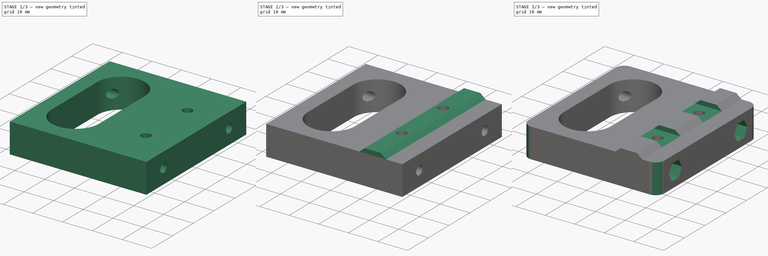
[diagram: build sequence overview — one tinted view per stage of 3, left to right]
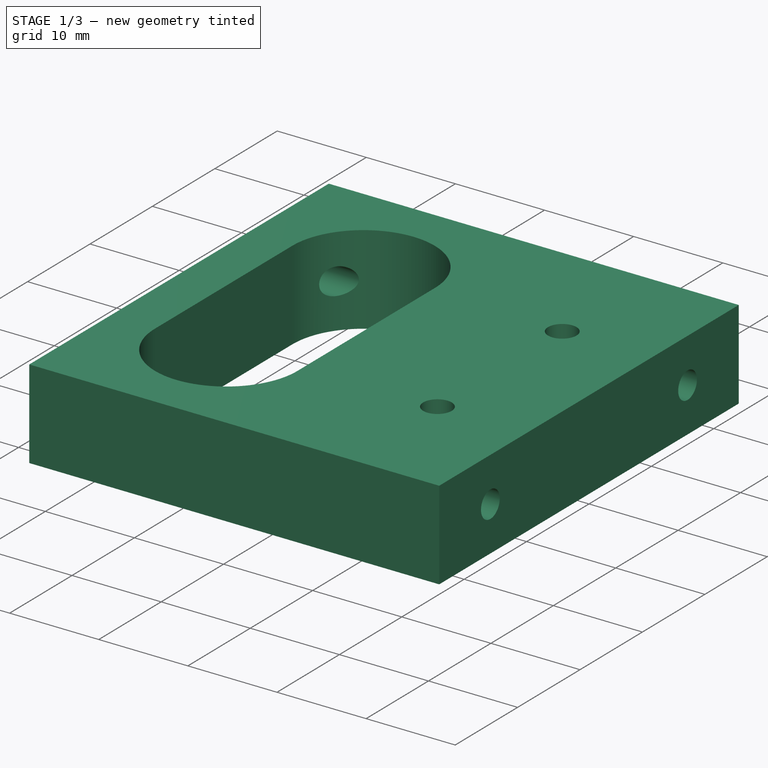
[diagram: stage 1 of 3 — iso view after this stage's code; geometry added in this stage tinted green]
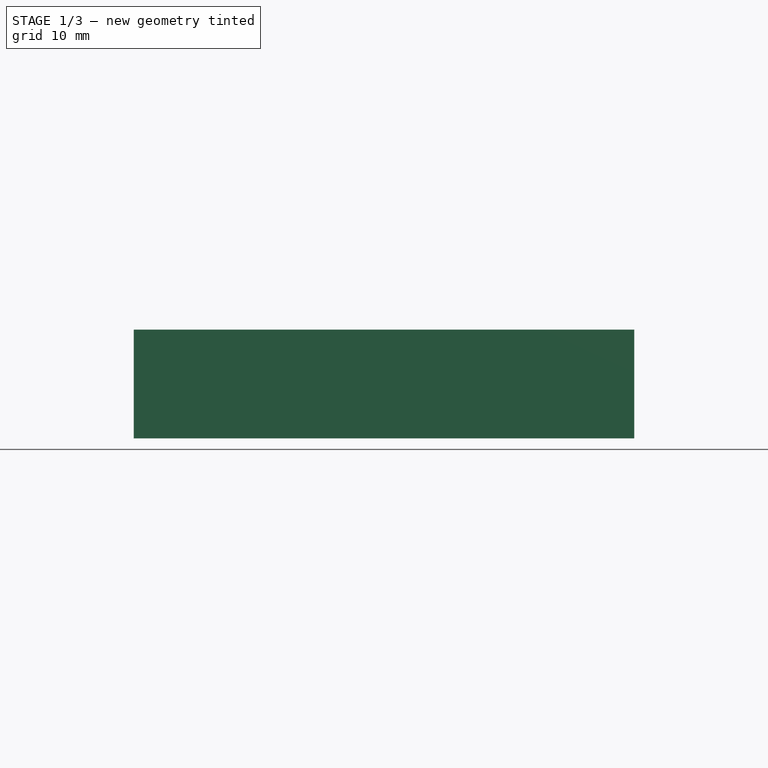
[diagram: stage 1 of 3 — front view after this stage's code; geometry added in this stage tinted green]
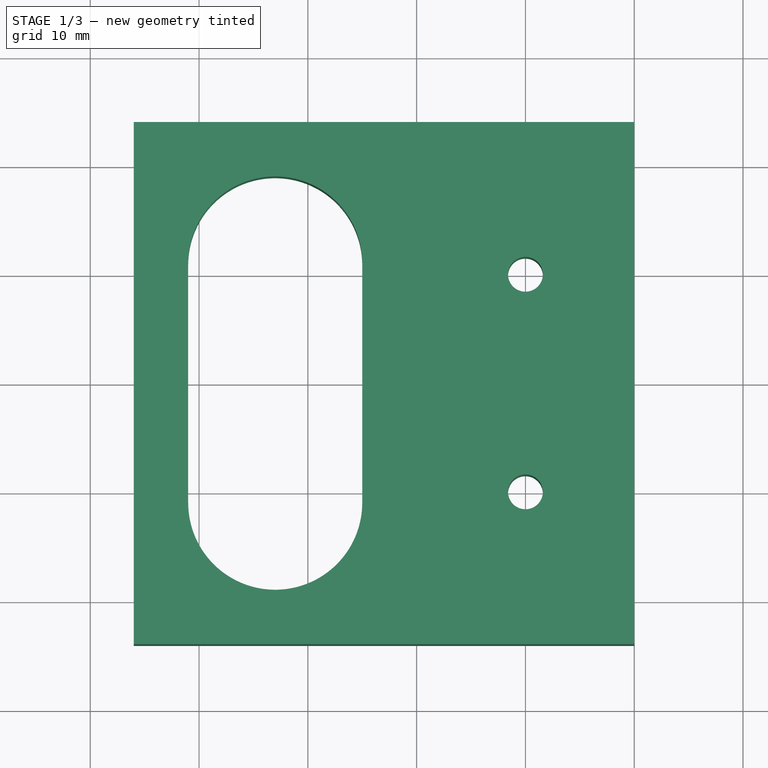
[diagram: stage 1 of 3 — top view after this stage's code; geometry added in this stage tinted green]
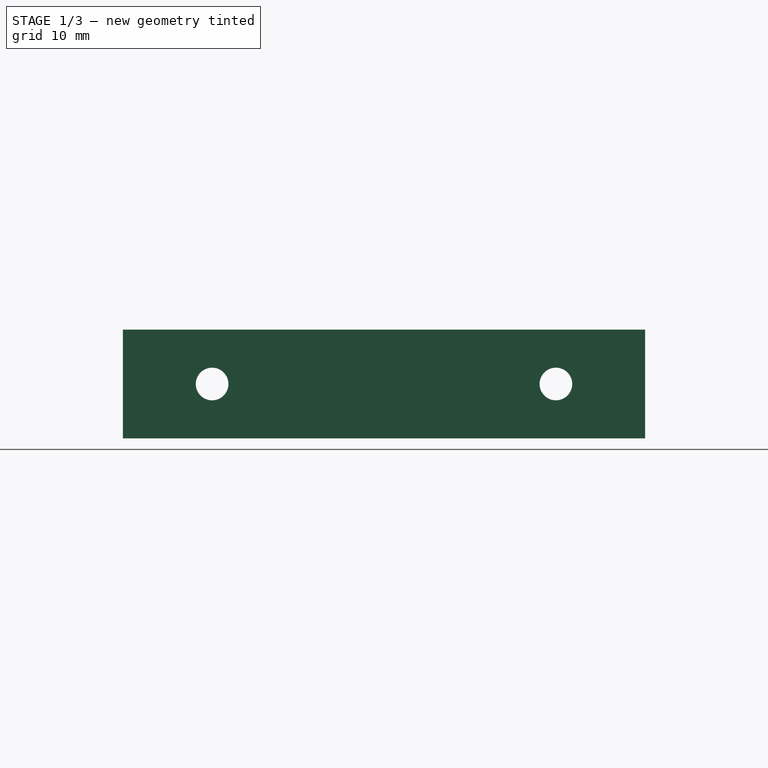
[diagram: stage 1 of 3 — right view after this stage's code; geometry added in this stage tinted green]
FCSTD DOCUMENT  (FreeCAD 1.0R39109 (Git))
Label: base-fixadora-V2
License: All rights reserved
LicenseURL: https://en.wikipedia.org/wiki/All_rights_reserved
objects: Sketcher::SketchObject×7, PartDesign::Pocket×5, PartDesign::Pad×2, PartDesign::Fillet×1, PartDesign::Body×1
note: 39 computed .brp shape members not serialized (recipe doc carries the construction recipe); baked Part::Feature solids carry a one-line shape summary decoded from their .brp

FEATURE [Sketcher::SketchObject] Sketch
  ArcFitTolerance = 1e-06
  AttachmentSupport = -> [XY_Plane]
  FullyConstrained = true
  MakeInternals = false
  MapMode = 5
  sketch-geometry (14):
    g0: LineSegment [constr] StartX=-25.75 StartY=24 StartZ=0 EndX=-25.75 EndY=-24 EndZ=0
    g1: LineSegment [constr] StartX=-25.75 StartY=-24 StartZ=0 EndX=25.75 EndY=-24 EndZ=0
    g2: LineSegment [constr] StartX=25.75 StartY=-24 StartZ=0 EndX=25.75 EndY=24 EndZ=0
    g3: LineSegment [constr] StartX=25.75 StartY=24 StartZ=0 EndX=-25.75 EndY=24 EndZ=0
    g4: LineSegment StartX=20 StartY=24 StartZ=0 EndX=-26 EndY=24 EndZ=0
    g5: LineSegment StartX=-26 StartY=24 StartZ=0 EndX=-26 EndY=-24 EndZ=0
    g6: LineSegment StartX=-26 StartY=-24 StartZ=0 EndX=20 EndY=-24 EndZ=0
    g7: LineSegment StartX=20 StartY=-24 StartZ=0 EndX=20 EndY=24 EndZ=0
    g8: LineSegment [constr] StartX=0 StartY=24 StartZ=0 EndX=0 EndY=-24 EndZ=0
    g9: ArcOfCircle CenterX=-13 CenterY=11 CenterZ=0 NormalX=0 NormalY=0 NormalZ=1 AngleXU=0 Radius=8 StartAngle=1e-16 EndAngle=3.14159
    g10: ArcOfCircle CenterX=-13 CenterY=-11 CenterZ=0 NormalX=0 NormalY=0 NormalZ=1 AngleXU=0 Radius=8 StartAngle=3.14159 EndAngle=6.28319
    g11: LineSegment StartX=-5 StartY=11 StartZ=0 EndX=-5 EndY=-11 EndZ=0
    g12: LineSegment StartX=-21 StartY=11 StartZ=0 EndX=-21 EndY=-11 EndZ=0
    g13: LineSegment [constr] StartX=-13 StartY=24 StartZ=0 EndX=-13 EndY=19 EndZ=0
  constraints (37):
    c: Coincident(g0,g1)
    c: Coincident(g1,g2)
    c: Coincident(g2,g3)
    c: Coincident(g3,g0)
    c: Vertical(g2)
    c: Horizontal(g1)
    c: Distance(g3,g3) = 51.5
    c: Distance(g0,g0) = 48
    c: Symmetric(g2,g0,g-2)
    c: Symmetric(g0,g0,g-1)
    c: Coincident(g4,g5)
    c: Coincident(g5,g6)
    c: Coincident(g6,g7)
    c: Coincident(g7,g4)
    c: Horizontal(g4)
    c: Horizontal(g6)
    c: Vertical(g5)
    c: Vertical(g7)
    c: PointOnObject(g8,g4)
    c: PointOnObject(g8,g6)
    c: Symmetric(g8,g8,g-1)
    c: PointOnObject(g8,g-2)
    c: Distance(g8,g4) = 20
    c: DistanceX(g5,g-1) = 26
    c: PointOnObject(g0,g4)
    c: Tangent(g9,g11) = 1.5708
    c: Tangent(g9,g12) = -1.5708
    c: Tangent(g10,g11) = 1.5708
    c: Tangent(g10,g12) = -1.5708
    c: Equal(g9,g10)
    c: Symmetric(g10,g9,g-1)
    c: PointOnObject(g13,g9)
    c: PointOnObject(g13,g4)
    c: Vertical(g13,g9)
    c: Distance(g13,g13) = 5
    c: Distance(g10,g5) = 5
    c: Symmetric(g8,g4,g13)
FEATURE [PartDesign::Pad] Pad
  Direction = (0,0,1)
  Length = 10
  Length2 = 10
  Profile = -> Sketch
  ReferenceAxis = -> Sketch [N_Axis]
  Refine = true
  Suppressed = false
  Type = 0
FEATURE [Sketcher::SketchObject] Sketch001
  ArcFitTolerance = 1e-06
  AttachmentSupport = -> [Pad]
  ExternalGeometry = -> [Pad]
  FullyConstrained = true
  MakeInternals = false
  MapMode = 5
  Placement = pos=(-26,0,0) rot=(0.57735,-0.57735,-0.57735;2.0944rad)
  sketch-geometry (3):
    g0: LineSegment [constr] StartX=-15.8 StartY=5 StartZ=0 EndX=15.8 EndY=5 EndZ=0
    g1: Circle CenterX=-15.8 CenterY=5 CenterZ=0 NormalX=0 NormalY=0 NormalZ=1 AngleXU=0 Radius=1.5
    g2: Circle CenterX=15.8 CenterY=5 CenterZ=0 NormalX=0 NormalY=0 NormalZ=1 AngleXU=0 Radius=1.5
  constraints (7):
    c: Symmetric(g-3,g-3,g0)
    c: Symmetric(g0,g0,g-2)
    c: Distance(g0,g0) = 31.6
    c: Coincident(g1,g0)
    c: Coincident(g2,g0)
    c: Diameter(g2) = 3
    c: Equal(g1,g2)
FEATURE [PartDesign::Pocket] Pocket
  BaseFeature = -> Pad
  Direction = (1,0,0)
  Length = 5
  Length2 = 5
  Profile = -> Sketch001
  ReferenceAxis = -> Sketch001 [N_Axis]
  Refine = true
  Suppressed = false
  Type = 1
FEATURE [Sketcher::SketchObject] Sketch002
  ArcFitTolerance = 1e-06
  AttachmentSupport = -> [Pocket]
  ExternalGeometry = -> [Pocket]
  FullyConstrained = true
  MakeInternals = false
  MapMode = 5
  Placement = pos=(0,0,10) rot=(0,0,1;0rad)
  sketch-geometry (7):
    g0: LineSegment [constr] StartX=20 StartY=24 StartZ=0 EndX=0 EndY=24 EndZ=0
    g1: LineSegment [constr] StartX=0 StartY=24 StartZ=0 EndX=0 EndY=-24 EndZ=0
    g2: LineSegment [constr] StartX=0 StartY=-24 StartZ=0 EndX=20 EndY=-24 EndZ=0
    g3: LineSegment [constr] StartX=20 StartY=-24 StartZ=0 EndX=20 EndY=24 EndZ=0
    g4: Circle CenterX=10 CenterY=10 CenterZ=0 NormalX=0 NormalY=0 NormalZ=1 AngleXU=0 Radius=1.6
    g5: Circle CenterX=10 CenterY=-10 CenterZ=0 NormalX=0 NormalY=0 NormalZ=1 AngleXU=0 Radius=1.6
    g6: LineSegment [constr] StartX=10 StartY=10 StartZ=0 EndX=10 EndY=-10 EndZ=0
  constraints (17):
    c: Coincident(g0,g1)
    c: Coincident(g1,g2)
    c: Coincident(g2,g3)
    c: Coincident(g3,g0)
    c: Horizontal(g2)
    c: Vertical(g1)
    c: Vertical(g3)
    c: Coincident(g0,g-3)
    c: PointOnObject(g1,g-4)
    c: PointOnObject(g1,g-2)
    c: Symmetric(g5,g4,g-1)
    c: Coincident(g6,g4)
    c: Symmetric(g0,g0,g6)
    c: Coincident(g5,g6)
    c: Distance(g6,g6) = 20
    c: Diameter(g4) = 3.2
    c: Equal(g5,g4)
FEATURE [PartDesign::Pocket] Pocket001
  BaseFeature = -> Pocket
  Direction = (0,0,-1)
  Length = 5
  Length2 = 5
  Profile = -> Sketch002
  ReferenceAxis = -> Sketch002 [N_Axis]
  Refine = true
  Suppressed = false
  Type = 1
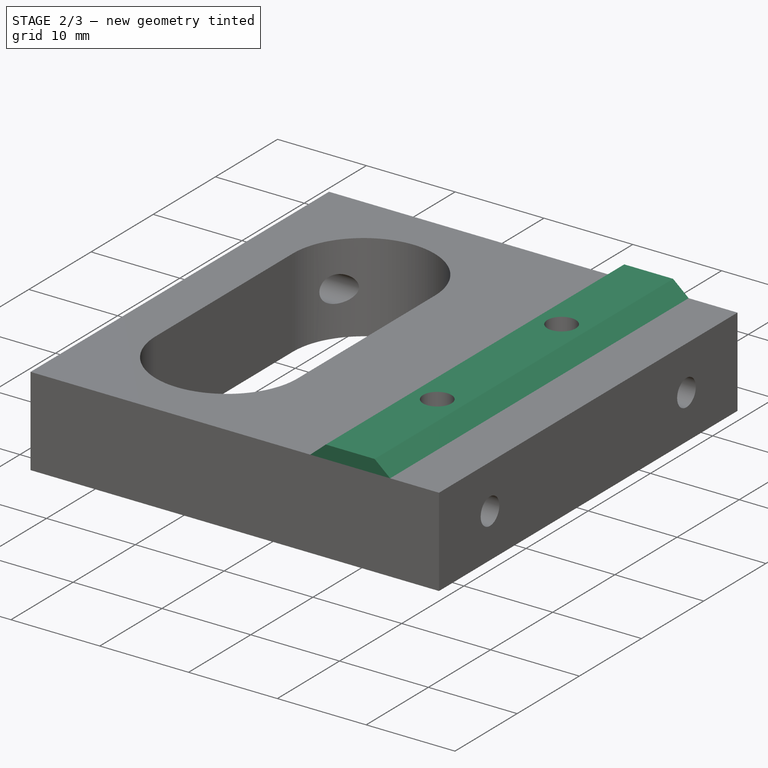
[diagram: stage 2 of 3 — iso view after this stage's code; geometry added in this stage tinted green]
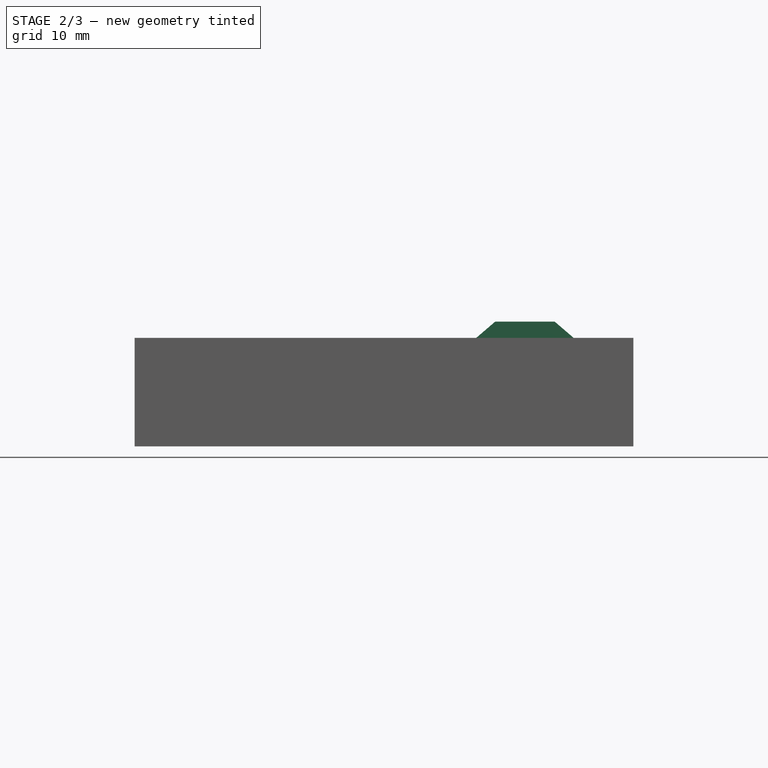
[diagram: stage 2 of 3 — front view after this stage's code; geometry added in this stage tinted green]
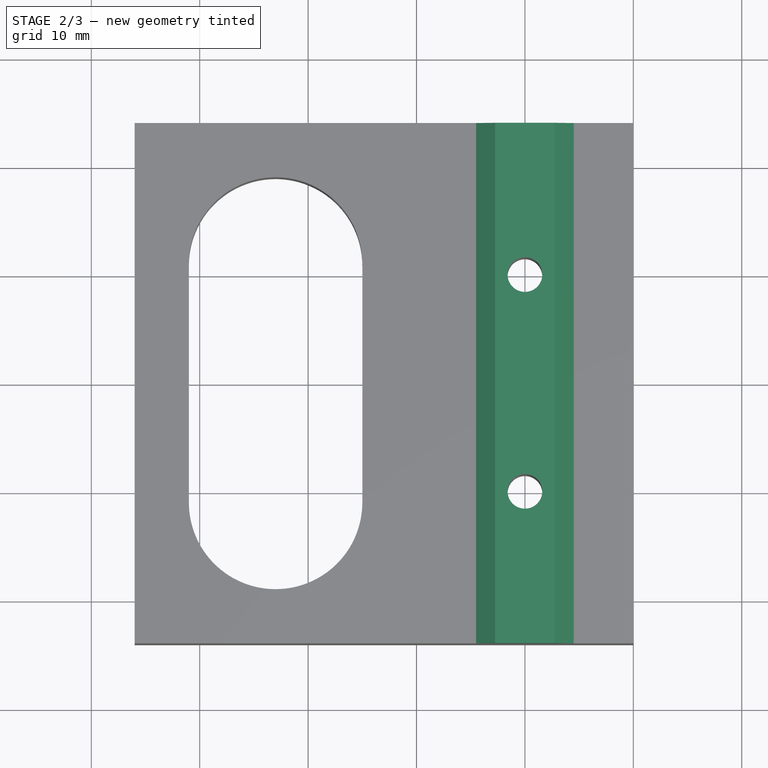
[diagram: stage 2 of 3 — top view after this stage's code; geometry added in this stage tinted green]
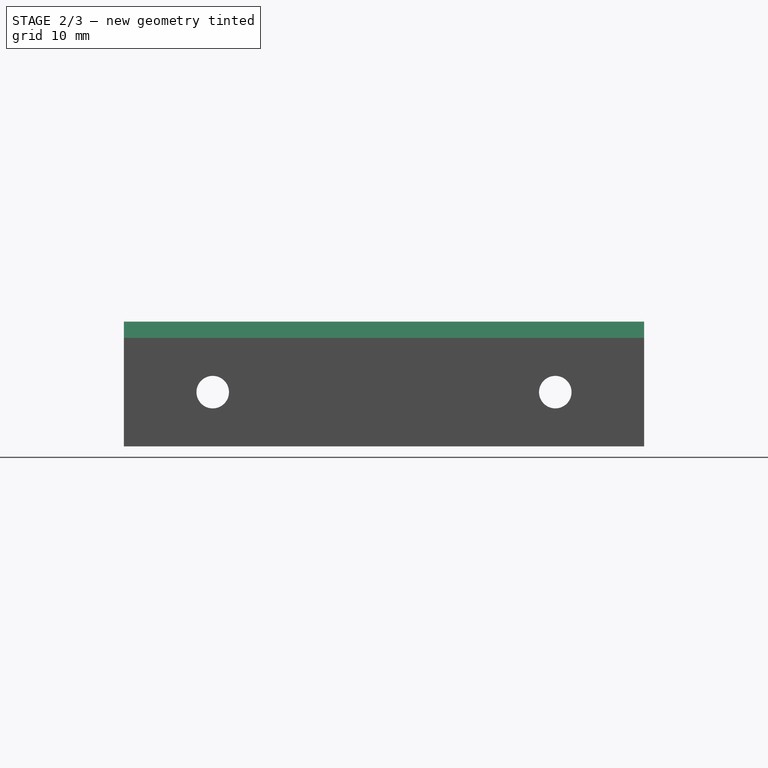
[diagram: stage 2 of 3 — right view after this stage's code; geometry added in this stage tinted green]
FEATURE [Sketcher::SketchObject] Sketch003
  ArcFitTolerance = 1e-06
  AttachmentSupport = -> [Pocket001]
  ExternalGeometry = -> [Pocket001]
  FullyConstrained = true
  MakeInternals = false
  MapMode = 5
  Placement = pos=(0,24,0) rot=(0,0.707107,0.707107;3.14159rad)
  sketch-geometry (6):
    g0: LineSegment StartX=-12.75 StartY=11.5 StartZ=0 EndX=-7.25 EndY=11.5 EndZ=0
    g1: LineSegment StartX=-7.25 StartY=11.5 StartZ=0 EndX=-5.5 EndY=10 EndZ=0
    g2: LineSegment StartX=-5.5 StartY=10 StartZ=0 EndX=-14.5 EndY=10 EndZ=0
    g3: LineSegment StartX=-14.5 StartY=10 StartZ=0 EndX=-12.75 EndY=11.5 EndZ=0
    g4: LineSegment [constr] StartX=-10 StartY=10 StartZ=0 EndX=-10 EndY=11.5 EndZ=0
    g5: LineSegment [constr] StartX=-20 StartY=10 StartZ=0 EndX=0 EndY=10 EndZ=0
  constraints (16):
    c: Coincident(g0,g1)
    c: Coincident(g1,g2)
    c: Coincident(g2,g3)
    c: Coincident(g3,g0)
    c: PointOnObject(g4,g2)
    c: Coincident(g5,g-3)
    c: PointOnObject(g5,g-2)
    c: PointOnObject(g5,g-3)
    c: Symmetric(g0,g0,g4)
    c: Symmetric(g2,g1,g4)
    c: Symmetric(g5,g5,g4)
    c: PointOnObject(g4,g5)
    c: PointOnObject(g4,g0)
    c: Distance(g2,g2) = 9
    c: Distance(g0,g0) = 5.5
    c: DistanceY(g3,g3) = 1.5
FEATURE [PartDesign::Pad] Pad001
  BaseFeature = -> Pocket001
  Direction = (0,1,-2e-16)
  Length = 10
  Length2 = 10
  Profile = -> Sketch003
  ReferenceAxis = -> Sketch003 [N_Axis]
  Refine = true
  Suppressed = false
  Type = 3
  UpToFace = -> Pocket001 [Face6]
FEATURE [PartDesign::Pocket] Pocket002
  BaseFeature = -> Pad001
  Direction = (-1e-15,2e-16,1)
  Length = 5
  Length2 = 5
  Profile = -> Pad001 [Face20,Face19]
  Refine = true
  Suppressed = false
  Type = 1
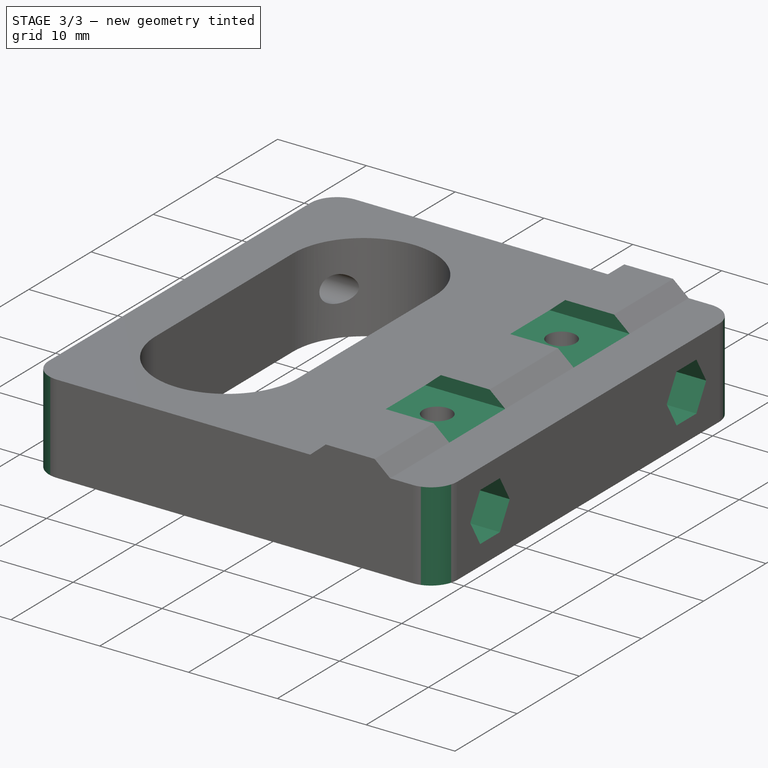
[diagram: stage 3 of 3 — iso view after this stage's code; geometry added in this stage tinted green]
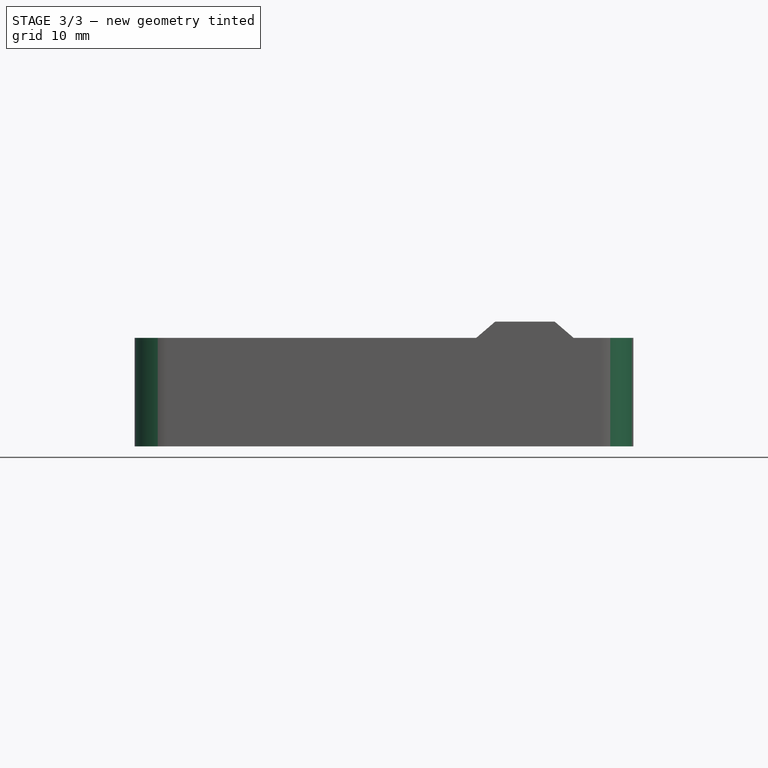
[diagram: stage 3 of 3 — front view after this stage's code; geometry added in this stage tinted green]
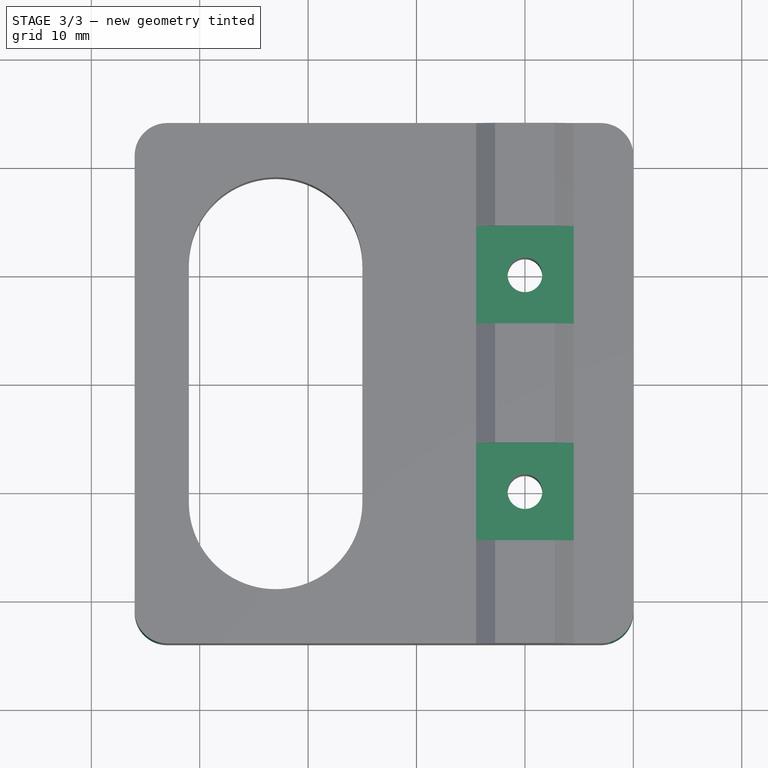
[diagram: stage 3 of 3 — top view after this stage's code; geometry added in this stage tinted green]
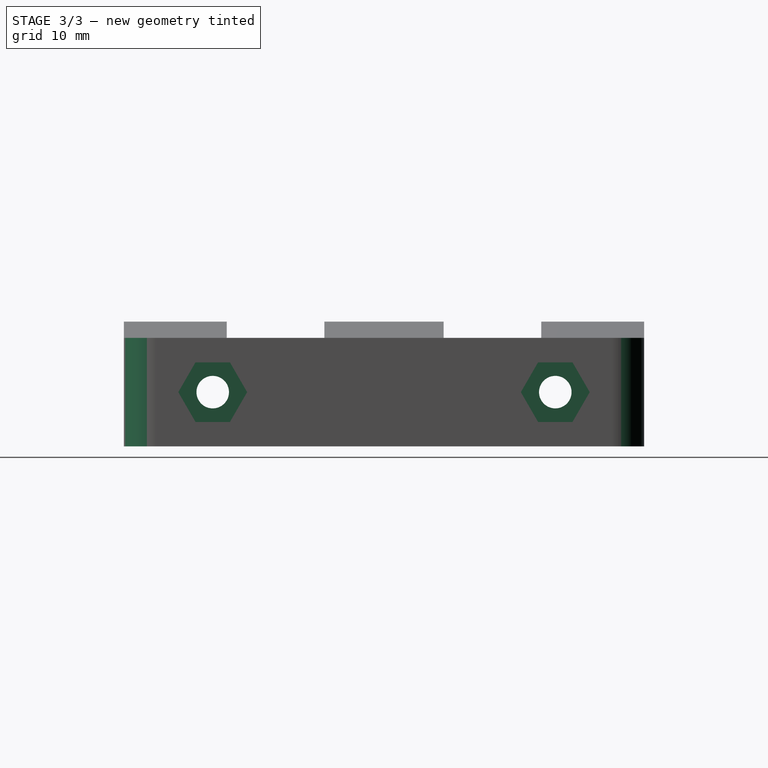
[diagram: stage 3 of 3 — right view after this stage's code; geometry added in this stage tinted green]
FEATURE [Sketcher::SketchObject] Sketch004
  ArcFitTolerance = 1e-06
  AttachmentSupport = -> [Pocket002]
  ExternalGeometry = -> [Pocket002]
  FullyConstrained = true
  MakeInternals = false
  MapMode = 5
  Placement = pos=(1.86e-14,2.6e-15,11.5) rot=(0,0,1;0rad)
  sketch-geometry (10):
    g0: Circle [constr] CenterX=10 CenterY=10 CenterZ=0 NormalX=0 NormalY=0 NormalZ=1 AngleXU=0 Radius=4.5
    g1: Circle [constr] CenterX=10 CenterY=-10 CenterZ=0 NormalX=0 NormalY=0 NormalZ=1 AngleXU=0 Radius=4.5
    g2: LineSegment StartX=5.5 StartY=14.5 StartZ=0 EndX=5.5 EndY=5.5 EndZ=0
    g3: LineSegment StartX=5.5 StartY=5.5 StartZ=0 EndX=14.5 EndY=5.5 EndZ=0
    g4: LineSegment StartX=14.5 StartY=5.5 StartZ=0 EndX=14.5 EndY=14.5 EndZ=0
    g5: LineSegment StartX=14.5 StartY=14.5 StartZ=0 EndX=5.5 EndY=14.5 EndZ=0
    g6: LineSegment StartX=5.5 StartY=-5.5 StartZ=0 EndX=5.5 EndY=-14.5 EndZ=0
    g7: LineSegment StartX=5.5 StartY=-14.5 StartZ=0 EndX=14.5 EndY=-14.5 EndZ=0
    g8: LineSegment StartX=14.5 StartY=-14.5 StartZ=0 EndX=14.5 EndY=-5.5 EndZ=0
    g9: LineSegment StartX=14.5 StartY=-5.5 StartZ=0 EndX=5.5 EndY=-5.5 EndZ=0
  constraints (28):
    c: Coincident(g0,g-3)
    c: Coincident(g1,g-4)
    c: Tangent(g0,g-6)
    c: Tangent(g1,g-5)
    c: Coincident(g2,g3)
    c: Coincident(g3,g4)
    c: Coincident(g4,g5)
    c: Coincident(g5,g2)
    c: Vertical(g2)
    c: Vertical(g4)
    c: Horizontal(g3)
    c: Horizontal(g5)
    c: Coincident(g6,g7)
    c: Coincident(g7,g8)
    c: Coincident(g8,g9)
    c: Coincident(g9,g6)
    c: Vertical(g6)
    c: Vertical(g8)
    c: Horizontal(g7)
    c: Horizontal(g9)
    c: Tangent(g9,g1)
    c: Tangent(g8,g1)
    c: Tangent(g6,g1)
    c: Tangent(g7,g1)
    c: Tangent(g0,g5)
    c: Tangent(g0,g2)
    c: Tangent(g0,g3)
    c: Tangent(g0,g4)
FEATURE [PartDesign::Pocket] Pocket003
  BaseFeature = -> Pocket002
  Direction = (-1.6e-15,0,-1)
  Length = 0
  Length2 = 5
  Profile = -> Sketch004
  ReferenceAxis = -> Sketch004 [N_Axis]
  Refine = true
  Suppressed = false
  Type = 3
  UpToFace = -> Pocket002 [Face12]
FEATURE [PartDesign::Fillet] Fillet
  Base = -> Pocket003 [Edge7,Edge22,Edge1,Edge4]
  BaseFeature = -> Pocket003
  Radius = 3
  Refine = true
  SupportTransform = false
  Suppressed = false
  UseAllEdges = false
FEATURE [Sketcher::SketchObject] Sketch005
  ArcFitTolerance = 1e-06
  AttachmentSupport = -> [Fillet]
  ExternalGeometry = -> [Fillet]
  FullyConstrained = true
  MakeInternals = false
  MapMode = 5
  Placement = pos=(0,0,0) rot=(1,0,0;3.14159rad)
  sketch-geometry (1):
    g0: LineSegment [constr] StartX=-36 StartY=0 StartZ=0 EndX=14 EndY=0 EndZ=0
  constraints (6):
    c: Distance(g0,g0) = 50
    c: Symmetric(g-3,g-3,g0)
    c: DistanceX(g0,g-3) = 10
    c: DistanceX(g0,g-5) = 6
    c: DistanceX(g-4,g-5) = 10
    c: DistanceX(g-4,g0) = 4
FEATURE [Sketcher::SketchObject] Sketch006
  ArcFitTolerance = 1e-06
  AttachmentSupport = -> [Fillet]
  ExternalGeometry = -> [Fillet]
  FullyConstrained = true
  MakeInternals = false
  MapMode = 5
  Placement = pos=(20,0,0) rot=(0.57735,0.57735,0.57735;2.0944rad)
  sketch-geometry (14):
    g0: LineSegment StartX=-12.6246 StartY=5 StartZ=0 EndX=-14.2123 EndY=7.75 EndZ=0
    g1: LineSegment StartX=-14.2123 StartY=7.75 StartZ=0 EndX=-17.3877 EndY=7.75 EndZ=0
    g2: LineSegment StartX=-17.3877 StartY=7.75 StartZ=0 EndX=-18.9754 EndY=5 EndZ=0
    g3: LineSegment StartX=-18.9754 StartY=5 StartZ=0 EndX=-17.3877 EndY=2.25 EndZ=0
    g4: LineSegment StartX=-17.3877 StartY=2.25 StartZ=0 EndX=-14.2123 EndY=2.25 EndZ=0
    g5: LineSegment StartX=-14.2123 StartY=2.25 StartZ=0 EndX=-12.6246 EndY=5 EndZ=0
    g6: Circle [constr] CenterX=-15.8 CenterY=5 CenterZ=0 NormalX=0 NormalY=0 NormalZ=1 AngleXU=0 Radius=3.17543
    g7: LineSegment StartX=17.3877 StartY=7.75 StartZ=0 EndX=14.2123 EndY=7.75 EndZ=0
    g8: LineSegment StartX=14.2123 StartY=7.75 StartZ=0 EndX=12.6246 EndY=5 EndZ=0
    g9: LineSegment StartX=12.6246 StartY=5 StartZ=0 EndX=14.2123 EndY=2.25 EndZ=0
    g10: LineSegment StartX=14.2123 StartY=2.25 StartZ=0 EndX=17.3877 EndY=2.25 EndZ=0
    g11: LineSegment StartX=17.3877 StartY=2.25 StartZ=0 EndX=18.9754 EndY=5 EndZ=0
    g12: LineSegment StartX=18.9754 StartY=5 StartZ=0 EndX=17.3877 EndY=7.75 EndZ=0
    g13: Circle [constr] CenterX=15.8 CenterY=5 CenterZ=0 NormalX=0 NormalY=0 NormalZ=1 AngleXU=0 Radius=3.17543
  constraints (32):
    c: Coincident(g0,g1)
    c: Coincident(g1,g2)
    c: Coincident(g2,g3)
    c: Coincident(g3,g4)
    c: Coincident(g4,g5)
    c: Coincident(g5,g0)
    c: Equal(g0, g1-g5) x5
    c: PointOnObject(g0,g6)
    c: PointOnObject(g1,g6)
    c: PointOnObject(g2,g6)
    c: PointOnObject(g3,g6)
    c: PointOnObject(g4,g6)
    c: PointOnObject(g5,g6)
    c: Coincident(g6,g-4)
    c: Coincident(g7,g8)
    c: Coincident(g8,g9)
    c: Coincident(g9,g10)
    c: Coincident(g10,g11)
    c: Coincident(g11,g12)
    c: Coincident(g12,g7)
    c: Equal(g7, g8-g12) x5
    c: PointOnObject(g7,g13)
    c: PointOnObject(g8,g13)
    c: PointOnObject(g9,g13)
    c: PointOnObject(g10,g13)
    c: PointOnObject(g11,g13)
    c: PointOnObject(g12,g13)
    c: Coincident(g13,g-3)
    c: Horizontal(g4)
    c: Horizontal(g10)
    c: Distance(g3,g1) = 5.5
    c: Equal(g6,g13)
FEATURE [PartDesign::Pocket] Pocket004
  BaseFeature = -> Fillet
  Direction = (-1,0,0)
  Length = 10.5
  Length2 = 5
  Profile = -> Sketch006
  ReferenceAxis = -> Sketch006 [N_Axis]
  Refine = true
  Suppressed = false
  Type = 0
FEATURE [PartDesign::Body] Body  label="Corpo"
  AllowCompound = false
  Group = -> [Sketch,Pad,Sketch001,Pocket,Sketch002,Pocket001,Sketch003,Pad001,Pocket002,Sketch004,Pocket003,Fillet,Sketch005,Sketch006,Pocket004]
  Origin = -> Origin
  Tip = -> Pocket004
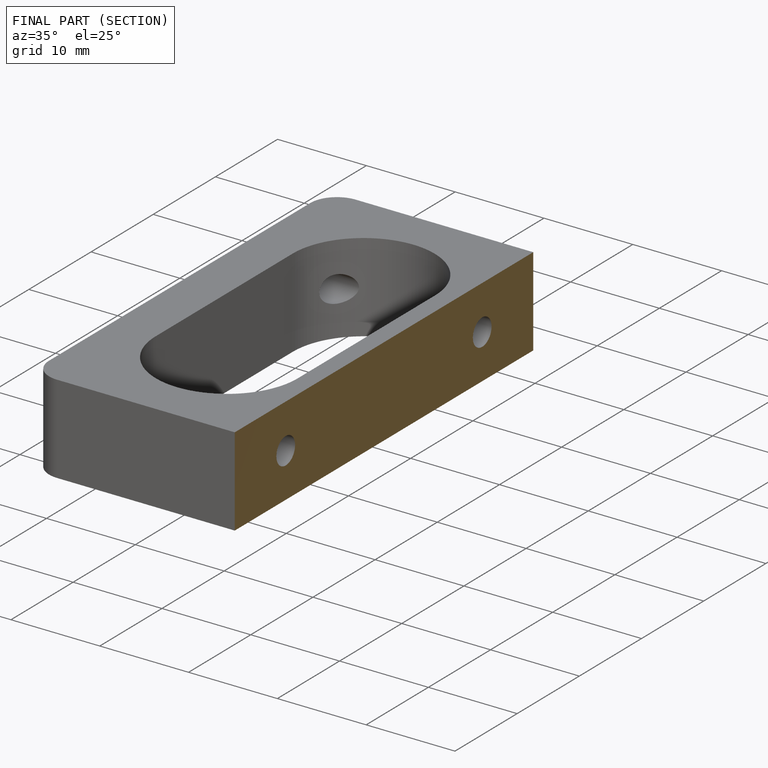
[diagram: finished part — half-section view (interior)]
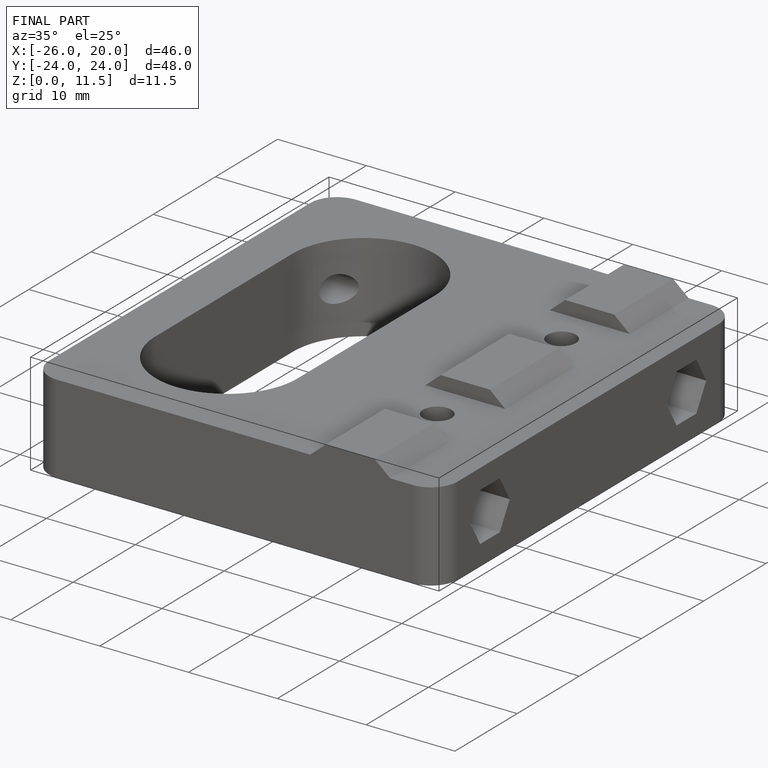
[diagram: finished part — iso view with bounding-box wireframe]
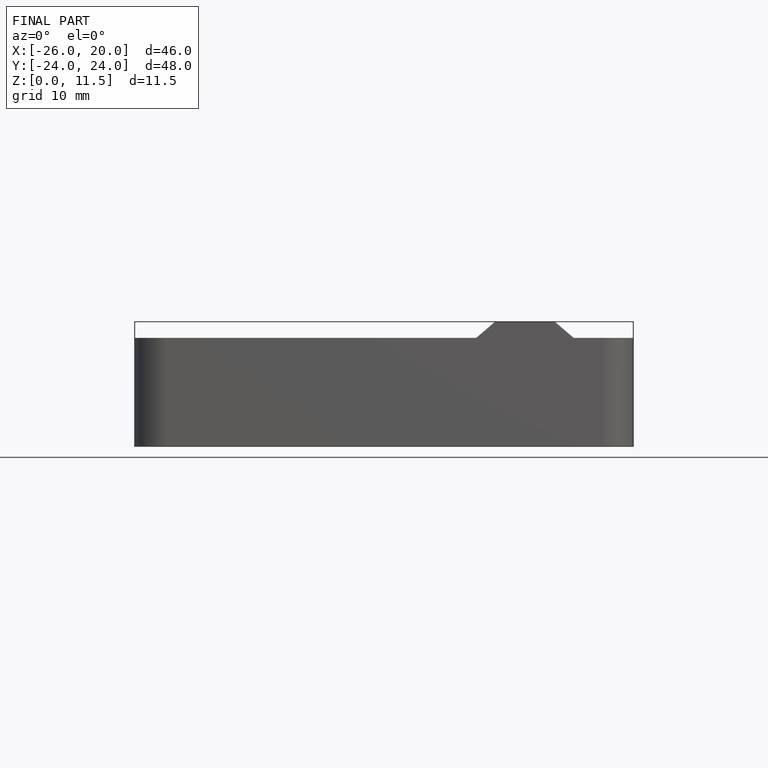
[diagram: finished part — front view with bounding-box wireframe]
